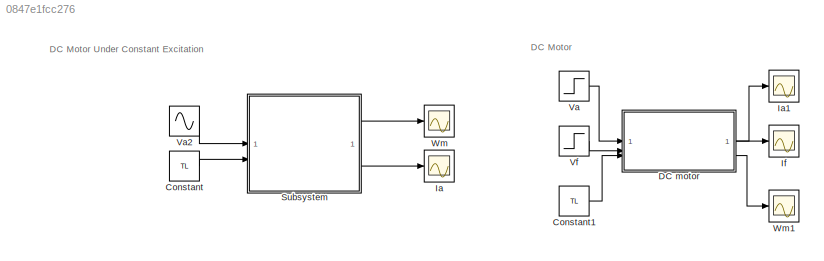
MODEL slx_0847e1fcc276
KIND model
CONFIG AbsTol = auto
CONFIG EnableMultiTasking = off
CONFIG FixedStep = auto
CONFIG InitFcn = Kf=.8;\nTL=0;\n\nRa=1.43;\nLa=10.4*10^(-3);\n\nRf=5;\nLf=2;\n\nMaf=1.8;\n\nj=.068;\nB=0;
CONFIG MaxStep = auto
CONFIG MinStep = auto
CONFIG RelTol = 1e-3
CONFIG SampleTimeConstraint = Unconstrained
CONFIG SolverName = VariableStepAuto
CONFIG StartTime = 0.0
CONFIG StopTime = 10
BLOCK [Constant] Constant
  Value = TL
BLOCK [Constant] Constant1
  Value = TL
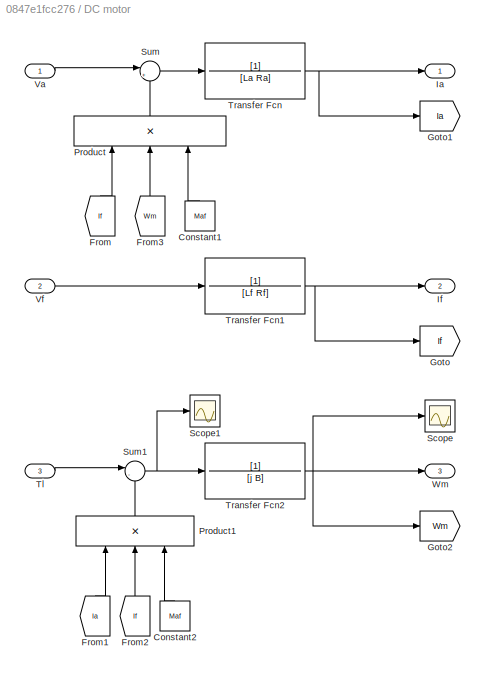
BLOCK [SubSystem] DC motor
BLOCK [Constant] DC motor/Constant1
  NameLocation = right
  Value = Maf
BLOCK [Constant] DC motor/Constant2
  NameLocation = right
  Value = Maf
BLOCK [From] DC motor/From
  GotoTag = If
  NameLocation = right
BLOCK [From] DC motor/From1
  GotoTag = Ia
  NameLocation = right
BLOCK [From] DC motor/From2
  GotoTag = If
  NameLocation = right
BLOCK [From] DC motor/From3
  GotoTag = Wm
  NameLocation = right
BLOCK [Goto] DC motor/Goto
  GotoTag = If
BLOCK [Goto] DC motor/Goto1
  GotoTag = Ia
BLOCK [Goto] DC motor/Goto2
  GotoTag = Wm
BLOCK [Outport] DC motor/Ia
BLOCK [Outport] DC motor/If
  Port = 2
BLOCK [Product] DC motor/Product
  Inputs = 3
  NameLocation = right
BLOCK [Product] DC motor/Product1
  Inputs = 3
  NameLocation = right
BLOCK [Scope] DC motor/Scope
  Floating = off
  NumInputPorts = 1
  ScopeSpecificationString = Simulink.scopes.TimeScopeBlockCfg('CurrentConfiguration', extmgr.ConfigurationSet(extmgr.Configuration('Core','General UI',true),extmgr.Configuration('Core','Source UI',true),extmgr.Configuration('Sources','WiredSimulink',true,'DataLoggingVariableName','ScopeData1'),extmgr.Configuration('Visuals','Time Domain',true,'SerializedDisplays',{struct('MinYLimReal','-17.68973','MaxYLimReal','159.20761','Y...<+1407ch>
BLOCK [Scope] DC motor/Scope1
  Floating = off
  NumInputPorts = 1
  ScopeSpecificationString = Simulink.scopes.TimeScopeBlockCfg('CurrentConfiguration', extmgr.ConfigurationSet(extmgr.Configuration('Core','General UI',true),extmgr.Configuration('Core','Source UI',true),extmgr.Configuration('Sources','WiredSimulink',true,'DataLoggingVariableName','ScopeData2'),extmgr.Configuration('Visuals','Time Domain',true),extmgr.Configuration('Tools','Plot Navigation',true),extmgr.Configuration('Tools',...<+40ch>
BLOCK [Sum] DC motor/Sum
  Inputs = |+-
BLOCK [Sum] DC motor/Sum1
  Inputs = |-+
BLOCK [Inport] DC motor/Tl
  Port = 3
BLOCK [TransferFcn] DC motor/Transfer Fcn
  Denominator = [La Ra]
BLOCK [TransferFcn] DC motor/Transfer Fcn1
  Denominator = [Lf Rf]
BLOCK [TransferFcn] DC motor/Transfer Fcn2
  Denominator = [j B]
BLOCK [Inport] DC motor/Va
BLOCK [Inport] DC motor/Vf
  Port = 2
BLOCK [Outport] DC motor/Wm
  Port = 3
BLOCK [Scope] Ia
  Floating = off
  NumInputPorts = 1
  ScopeSpecificationString = Simulink.scopes.TimeScopeBlockCfg('CurrentConfiguration', extmgr.ConfigurationSet(extmgr.Configuration('Core','General UI',true),extmgr.Configuration('Core','Source UI',true),extmgr.Configuration('Sources','WiredSimulink',true,'DataLoggingVariableName','ScopeData1'),extmgr.Configuration('Visuals','Time Domain',true,'SerializedDisplays',{struct('MinYLimReal','-26.29824','MaxYLimReal','26.29728','YL...<+1401ch>
BLOCK [Scope] Ia1
  Floating = off
  NumInputPorts = 1
  ScopeSpecificationString = Simulink.scopes.TimeScopeBlockCfg('CurrentConfiguration', extmgr.ConfigurationSet(extmgr.Configuration('Core','General UI',true),extmgr.Configuration('Core','Source UI',true),extmgr.Configuration('Sources','WiredSimulink',true,'DataLoggingVariableName','ScopeData2'),extmgr.Configuration('Visuals','Time Domain',true,'SerializedDisplays',{struct('MinYLimReal','-16.68287','MaxYLimReal','142.94292','Y...<+1379ch>
BLOCK [Scope] If
  Floating = off
  NumInputPorts = 1
  ScopeSpecificationString = Simulink.scopes.TimeScopeBlockCfg('CurrentConfiguration', extmgr.ConfigurationSet(extmgr.Configuration('Core','General UI',true),extmgr.Configuration('Core','Source UI',true),extmgr.Configuration('Sources','WiredSimulink',true,'DataLoggingVariableName','ScopeData1'),extmgr.Configuration('Visuals','Time Domain',true,'SerializedDisplays',{struct('MinYLimReal','-0.125','MaxYLimReal','1.125','YLabelRe...<+1357ch>
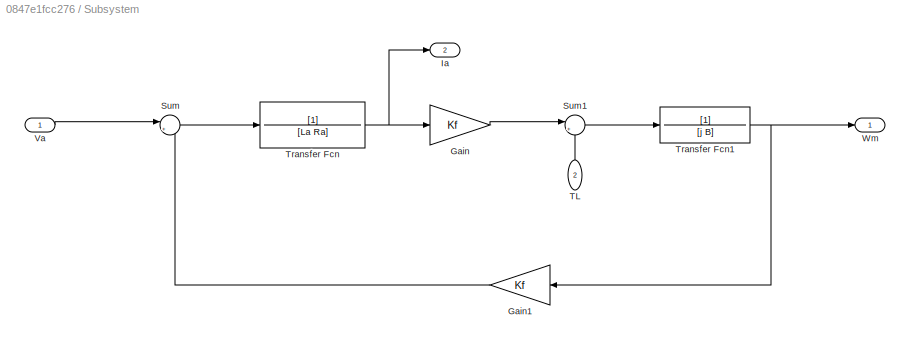
BLOCK [SubSystem] Subsystem
BLOCK [Gain] Subsystem/Gain
  Gain = Kf
BLOCK [Gain] Subsystem/Gain1
  Gain = Kf
  NameLocation = top
BLOCK [Outport] Subsystem/Ia
  Port = 2
BLOCK [Sum] Subsystem/Sum
  Inputs = |+-
BLOCK [Sum] Subsystem/Sum1
  Inputs = |+-
BLOCK [Inport] Subsystem/TL
  NameLocation = right
  Port = 2
BLOCK [TransferFcn] Subsystem/Transfer Fcn
  Denominator = [La Ra]
BLOCK [TransferFcn] Subsystem/Transfer Fcn1
  Denominator = [j B]
BLOCK [Inport] Subsystem/Va
BLOCK [Outport] Subsystem/Wm
BLOCK [Step] Va
  After = 240
  SampleTime = 0
BLOCK [Sin] Va2
  Amplitude = 200
  SampleTime = 0
BLOCK [Step] Vf
  After = 5
  Before = 5
  SampleTime = 0
BLOCK [Scope] Wm
  Floating = off
  NumInputPorts = 1
  ScopeSpecificationString = Simulink.scopes.TimeScopeBlockCfg('CurrentConfiguration', extmgr.ConfigurationSet(extmgr.Configuration('Core','General UI',true),extmgr.Configuration('Core','Source UI',true),extmgr.Configuration('Sources','WiredSimulink',true),extmgr.Configuration('Visuals','Time Domain',true,'SerializedDisplays',{struct('MinYLimReal','-309.28859','MaxYLimReal','309.28534','YLabelReal','','MinYLimMag',' 0.00000',...<+1399ch>
BLOCK [Scope] Wm1
  Floating = off
  NumInputPorts = 1
  ScopeSpecificationString = Simulink.scopes.TimeScopeBlockCfg('CurrentConfiguration', extmgr.ConfigurationSet(extmgr.Configuration('Core','General UI',true),extmgr.Configuration('Core','Source UI',true),extmgr.Configuration('Sources','WiredSimulink',true,'DataLoggingVariableName','ScopeData1'),extmgr.Configuration('Visuals','Time Domain',true,'SerializedDisplays',{struct('MinYLimReal','-17.68973','MaxYLimReal','159.20761','Y...<+1423ch>
ANNOTATION (root): DC Motor
ANNOTATION (root): DC Motor Under Constant Excitation
LINE Constant1:1 -> DC motor:3
LINE Constant:1 -> Subsystem:2
LINE DC motor/Constant1:1 -> DC motor/Product:3
LINE DC motor/Constant2:1 -> DC motor/Product1:3
LINE DC motor/From1:1 -> DC motor/Product1:1
LINE DC motor/From2:1 -> DC motor/Product1:2
LINE DC motor/From3:1 -> DC motor/Product:2
LINE DC motor/From:1 -> DC motor/Product:1
LINE DC motor/Product1:1 -> DC motor/Sum1:2
LINE DC motor/Product:1 -> DC motor/Sum:2
NET DC motor/Sum1:1 -> DC motor/Scope1:1, DC motor/Transfer Fcn2:1
LINE DC motor/Sum:1 -> DC motor/Transfer Fcn:1
LINE DC motor/Tl:1 -> DC motor/Sum1:1
NET DC motor/Transfer Fcn1:1 -> DC motor/Goto:1, DC motor/If:1
NET DC motor/Transfer Fcn2:1 -> DC motor/Goto2:1, DC motor/Scope:1, DC motor/Wm:1
NET DC motor/Transfer Fcn:1 -> DC motor/Goto1:1, DC motor/Ia:1
LINE DC motor/Va:1 -> DC motor/Sum:1
LINE DC motor/Vf:1 -> DC motor/Transfer Fcn1:1
LINE DC motor:1 -> Ia1:1
LINE DC motor:2 -> If:1
LINE DC motor:3 -> Wm1:1
LINE Subsystem/Gain1:1 -> Subsystem/Sum:2
LINE Subsystem/Gain:1 -> Subsystem/Sum1:1
LINE Subsystem/Sum1:1 -> Subsystem/Transfer Fcn1:1
LINE Subsystem/Sum:1 -> Subsystem/Transfer Fcn:1
LINE Subsystem/TL:1 -> Subsystem/Sum1:2
NET Subsystem/Transfer Fcn1:1 -> Subsystem/Gain1:1, Subsystem/Wm:1
NET Subsystem/Transfer Fcn:1 -> Subsystem/Gain:1, Subsystem/Ia:1
LINE Subsystem/Va:1 -> Subsystem/Sum:1
LINE Subsystem:1 -> Wm:1
LINE Subsystem:2 -> Ia:1
LINE Va2:1 -> Subsystem:1
LINE Va:1 -> DC motor:1
LINE Vf:1 -> DC motor:2
note: NET lines group one-source signal fan-out (src -> all destinations, sorted); 1:1 wires keep LINE
